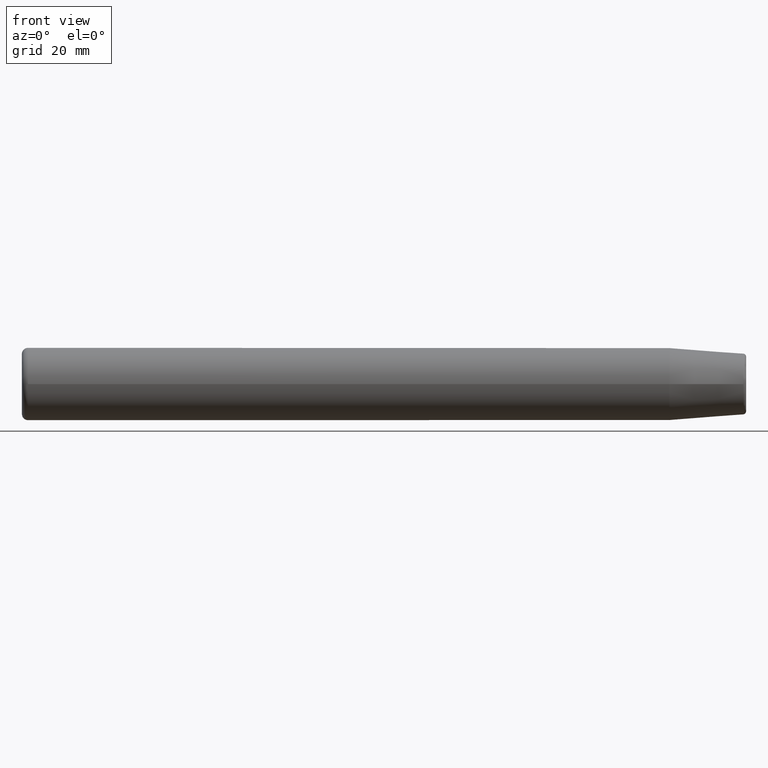
[diagram: clean part render]
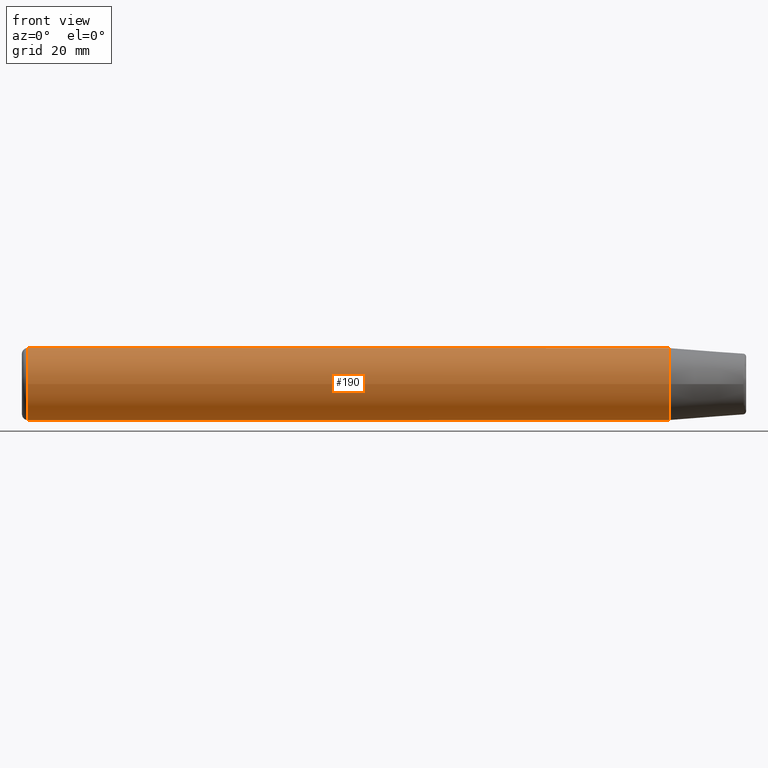
[diagram: same view with one face highlighted and labeled with its STEP entity id]
A machine part, front view. The second image highlights one B-rep face of the part: STEP entity #190.
In plain terms, the highlighted cylindrical surface (bore or boss wall) has radius 6 mm, axis along (1, 0, 0).
Its self-contained STEP definition (entity closure, byte-faithful):
#15=CYLINDRICAL_SURFACE('',#237,6.);
#29=LINE('',#351,#36);
#36=VECTOR('',#289,6.);
#49=FACE_OUTER_BOUND('',#64,.T.);
#64=EDGE_LOOP('',(#152,#153,#154,#155,#156));
#78=CIRCLE('',#227,6.);
#80=CIRCLE('',#231,6.);
#81=CIRCLE('',#232,6.);
#95=VERTEX_POINT('',#333);
#97=VERTEX_POINT('',#340);
#98=VERTEX_POINT('',#341);
#113=EDGE_CURVE('',#95,#95,#78,.T.);
#115=EDGE_CURVE('',#97,#98,#80,.T.);
#116=EDGE_CURVE('',#98,#97,#81,.T.);
#120=EDGE_CURVE('',#95,#98,#29,.T.);
#152=ORIENTED_EDGE('',*,*,#113,.F.);
#153=ORIENTED_EDGE('',*,*,#120,.T.);
#154=ORIENTED_EDGE('',*,*,#115,.F.);
#155=ORIENTED_EDGE('',*,*,#116,.F.);
#156=ORIENTED_EDGE('',*,*,#120,.F.);
#190=ADVANCED_FACE('',(#49),#15,.T.);
#227=AXIS2_PLACEMENT_3D('',#335,#267,#268);
#231=AXIS2_PLACEMENT_3D('',#342,#275,#276);
#232=AXIS2_PLACEMENT_3D('',#343,#277,#278);
#237=AXIS2_PLACEMENT_3D('',#350,#287,#288);
#267=DIRECTION('center_axis',(1.,0.,0.));
#268=DIRECTION('ref_axis',(0.,0.,-1.));
#275=DIRECTION('center_axis',(-1.,0.,0.));
#276=DIRECTION('ref_axis',(0.,-1.,1.83697019872103E-16));
#277=DIRECTION('center_axis',(-1.,0.,0.));
#278=DIRECTION('ref_axis',(0.,-1.,1.83697019872103E-16));
#287=DIRECTION('center_axis',(1.,0.,0.));
#288=DIRECTION('ref_axis',(0.,1.,0.));
#289=DIRECTION('',(-1.,0.,0.));
#333=CARTESIAN_POINT('',(107.293795263825,-6.,-7.34788079488412E-16));
#335=CARTESIAN_POINT('Origin',(107.293795263825,0.,0.));
#340=CARTESIAN_POINT('',(0.999999999999996,-7.34788079488412E-16,6.));
#341=CARTESIAN_POINT('',(0.999999999999996,-6.,-7.34788079488412E-16));
#342=CARTESIAN_POINT('Origin',(0.999999999999996,0.,0.));
#343=CARTESIAN_POINT('Origin',(0.999999999999996,0.,0.));
#350=CARTESIAN_POINT('Origin',(53.6468976319126,0.,0.));
#351=CARTESIAN_POINT('',(53.6468976319126,-6.,-7.34788079488412E-16));